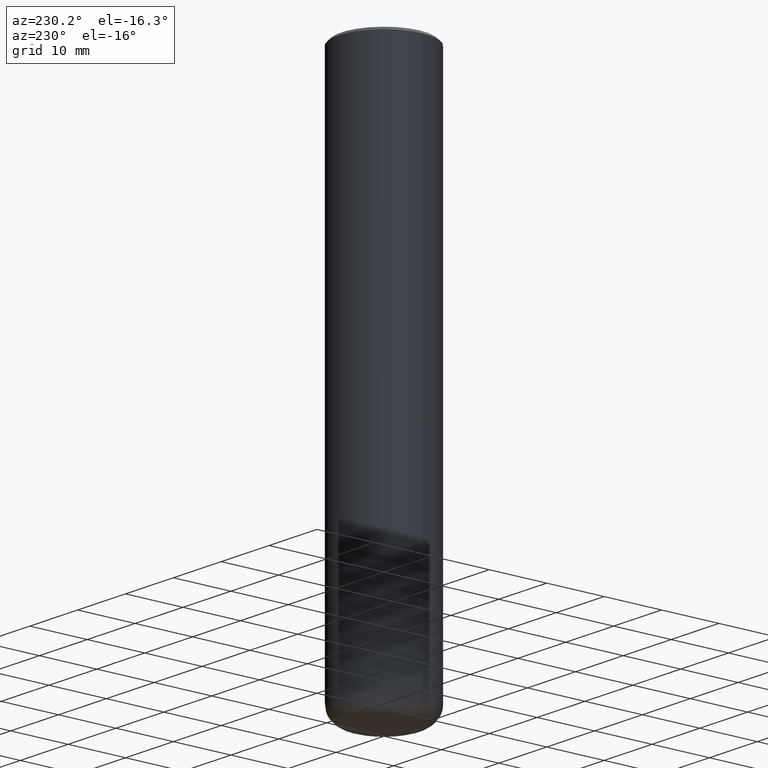
[diagram: clean part render]
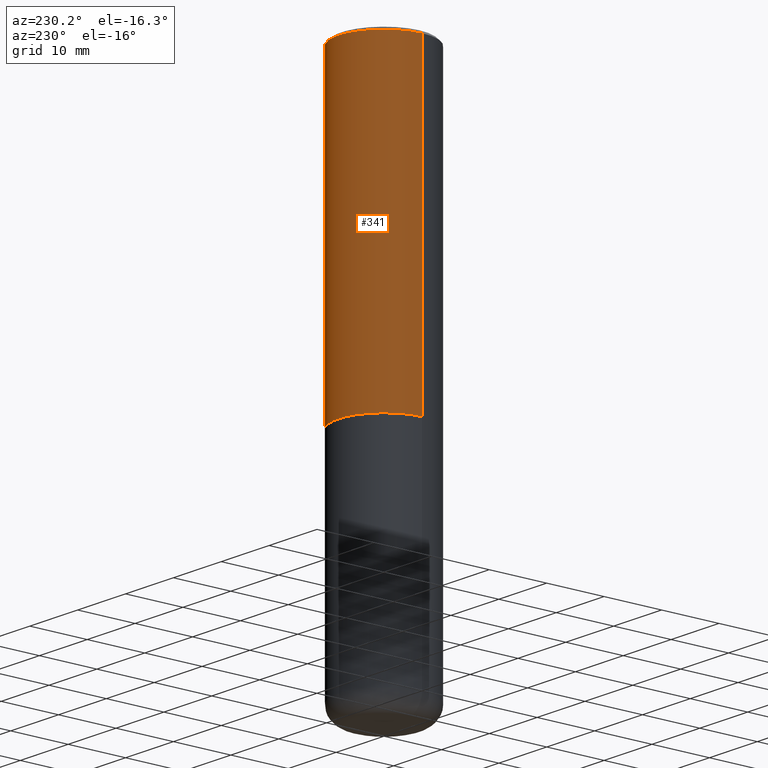
[diagram: same view with one face highlighted and labeled with its STEP entity id]
A machine part, auxiliary view. The second image highlights one B-rep face of the part: STEP entity #341.
In plain terms, the highlighted cylindrical surface (partial cylindrical patch) has radius 7.9375 mm, axis along (-0, 0, 1).
Its self-contained STEP definition (entity closure, byte-faithful):
#8 = CARTESIAN_POINT ( 'NONE',  ( 0.000000000000000000, 0.000000000000000000, 0.000000000000000000 ) ) ;
#23 = CARTESIAN_POINT ( 'NONE',  ( -0.3125000000000000000, -1.522421945989534932E-15, -2.124000000000000110 ) ) ;
#36 = ORIENTED_EDGE ( 'NONE', *, *, #420, .F. ) ;
#43 = CARTESIAN_POINT ( 'NONE',  ( 0.3125000000000000000, -9.598082200479800541E-15, -2.124000000000000110 ) ) ;
#54 = LINE ( 'NONE', #181, #147 ) ;
#69 = EDGE_LOOP ( 'NONE', ( #463, #390, #371, #36 ) ) ;
#87 = VERTEX_POINT ( 'NONE', #23 ) ;
#91 = DIRECTION ( 'NONE',  ( -2.445468806185136597E-29, 3.491481338843145583E-15, 1.000000000000000000 ) ) ;
#97 = DIRECTION ( 'NONE',  ( -2.445468806185136597E-29, 3.491481338843145583E-15, 1.000000000000000000 ) ) ;
#115 = CIRCLE ( 'NONE', #468, 0.3125000000000000000 ) ;
#122 = CYLINDRICAL_SURFACE ( 'NONE', #325, 0.3124999999999996114 ) ;
#147 = VECTOR ( 'NONE', #326, 39.37007874015748143 ) ;
#175 = VECTOR ( 'NONE', #246, 39.37007874015748143 ) ;
#178 = DIRECTION ( 'NONE',  ( 1.000000000000000000, -6.982962677686265133E-15, 0.000000000000000000 ) ) ;
#181 = CARTESIAN_POINT ( 'NONE',  ( -0.3124999999999996114, 2.220446049250310320E-15, -1.537167215704655990E-29 ) ) ;
#185 = VERTEX_POINT ( 'NONE', #43 ) ;
#194 = VERTEX_POINT ( 'NONE', #247 ) ;
#200 = FACE_OUTER_BOUND ( 'NONE', #69, .T. ) ;
#201 = AXIS2_PLACEMENT_3D ( 'NONE', #358, #91, #281 ) ;
#220 = EDGE_CURVE ( 'NONE', #339, #194, #311, .T. ) ;
#246 = DIRECTION ( 'NONE',  ( -2.445468806185136877E-29, 3.491481338843145188E-15, 1.000000000000000000 ) ) ;
#247 = CARTESIAN_POINT ( 'NONE',  ( -0.3124999999999991673, 2.112346210000089132E-15, -0.02000000000000015654 ) ) ;
#273 = DIRECTION ( 'NONE',  ( -2.445468806185136597E-29, 3.491481338843145583E-15, 1.000000000000000000 ) ) ;
#281 = DIRECTION ( 'NONE',  ( 1.000000000000000000, -6.982962677686266711E-15, 0.000000000000000000 ) ) ;
#293 = CARTESIAN_POINT ( 'NONE',  ( 5.194175744337230786E-29, -7.415906363702842194E-15, -2.124000000000000110 ) ) ;
#311 = CIRCLE ( 'NONE', #201, 0.3124999999999991673 ) ;
#325 = AXIS2_PLACEMENT_3D ( 'NONE', #8, #273, #352 ) ;
#326 = DIRECTION ( 'NONE',  ( -2.445468806185136877E-29, 3.491481338843145188E-15, 1.000000000000000000 ) ) ;
#339 = VERTEX_POINT ( 'NONE', #464 ) ;
#341 = ADVANCED_FACE ( 'NONE', ( #200 ), #122, .T. ) ;
#352 = DIRECTION ( 'NONE',  ( 1.000000000000000000, -6.982962677686266711E-15, 4.876176775795935232E-29 ) ) ;
#357 = CARTESIAN_POINT ( 'NONE',  ( 0.3124999999999996114, -2.182175836776955586E-15, 1.523805242436227833E-29 ) ) ;
#358 = CARTESIAN_POINT ( 'NONE',  ( 4.890937612370311694E-31, -6.982962677686347076E-17, -0.02000000000000015654 ) ) ;
#371 = ORIENTED_EDGE ( 'NONE', *, *, #220, .F. ) ;
#390 = ORIENTED_EDGE ( 'NONE', *, *, #479, .T. ) ;
#403 = LINE ( 'NONE', #357, #175 ) ;
#420 = EDGE_CURVE ( 'NONE', #185, #339, #403, .T. ) ;
#455 = EDGE_CURVE ( 'NONE', #185, #87, #115, .T. ) ;
#463 = ORIENTED_EDGE ( 'NONE', *, *, #455, .T. ) ;
#464 = CARTESIAN_POINT ( 'NONE',  ( 0.3124999999999991673, -2.213735251080461389E-15, -0.02000000000000015654 ) ) ;
#468 = AXIS2_PLACEMENT_3D ( 'NONE', #293, #97, #178 ) ;
#479 = EDGE_CURVE ( 'NONE', #87, #194, #54, .T. ) ;